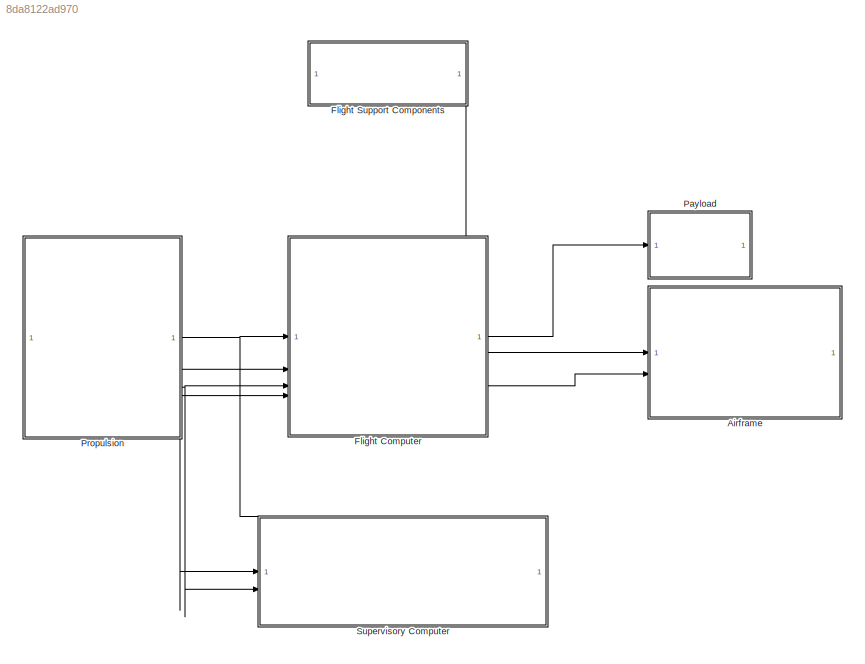
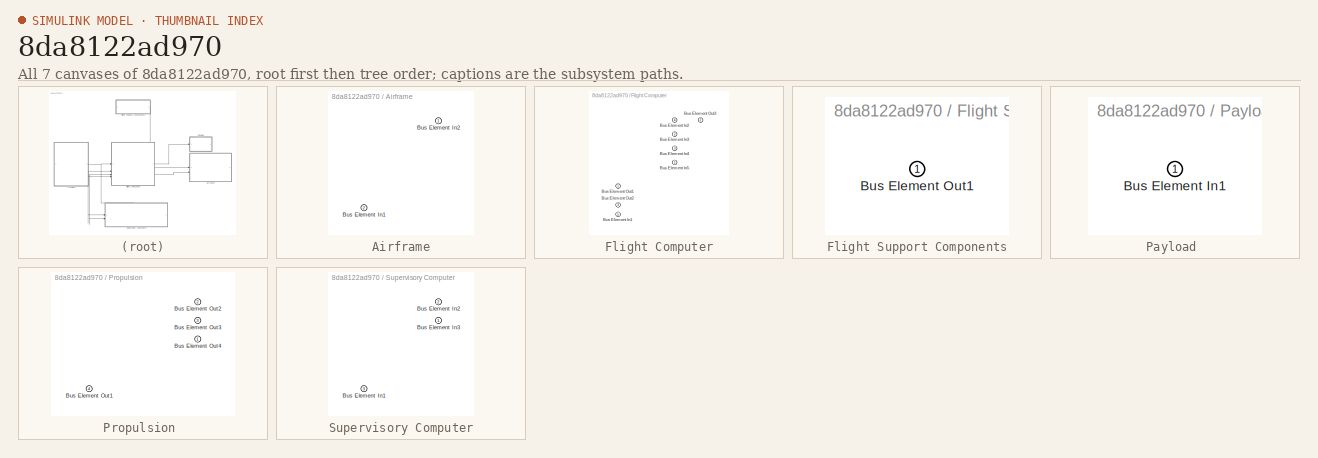
[diagram: thumbnail index - all 7 canvases of the model, root first then tree order]
MODEL slx_8da8122ad970
KIND model
CONFIG AbsTol = auto
CONFIG EnableMultiTasking = off
CONFIG FixedStep = auto
CONFIG MaxStep = auto
CONFIG MinStep = auto
CONFIG RelTol = 1e-3
CONFIG SampleTimeConstraint = Unconstrained
CONFIG SolverName = VariableStepAuto
CONFIG StartTime = 0.0
CONFIG StopTime = 10.0
BLOCK [SubSystem] Airframe
  PortSchema = {"entries":[{"content":{"headerSize":26,"margin":15,"minimumSpacing":25,"sides":[{"content":{"connectorIds":["In1","In2"]},"type":"ConnectorPlacement.EquallySpacedRectSide","uuid":"2c5e2d04-4906-4331-9418-21fa8db35aaf"},{"content":{"side":"RIGHT"},"type":"ConnectorPlacement.EquallySpacedRectSide","uuid":"94a89f28-0e32-42bb-af58-158d3f1cfd39"},{"content":{"side":"TOP"},"type":"ConnectorPlacement.Eq...<+252ch>
BLOCK [Inport] Airframe/Bus Element In1
  Port = 2
BLOCK [Inport] Airframe/Bus Element In2
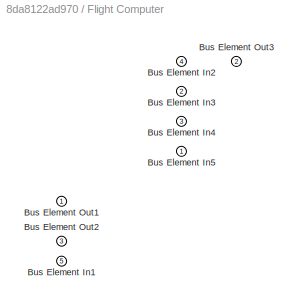
BLOCK [SubSystem] Flight Computer
  PortSchema = {"entries":[{"content":{"headerSize":26,"margin":15,"minimumSpacing":25,"sides":[{"content":{"connectorIds":["In1","In2","In3","In4"]},"type":"ConnectorPlacement.EquallySpacedRectSide","uuid":"2c5e2d04-4906-4331-9418-21fa8db35aaf"},{"content":{"connectorIds":["Out1","Out2","Out3"],"side":"RIGHT"},"type":"ConnectorPlacement.EquallySpacedRectSide","uuid":"94a89f28-0e32-42bb-af58-158d3f1cfd39"},{"con...<+325ch>
BLOCK [Inport] Flight Computer/Bus Element In1
  Port = 5
BLOCK [Inport] Flight Computer/Bus Element In2
  Port = 4
BLOCK [Inport] Flight Computer/Bus Element In3
  Port = 2
BLOCK [Inport] Flight Computer/Bus Element In4
  Port = 3
BLOCK [Inport] Flight Computer/Bus Element In5
BLOCK [Outport] Flight Computer/Bus Element Out1
BLOCK [Outport] Flight Computer/Bus Element Out2
  Port = 3
BLOCK [Outport] Flight Computer/Bus Element Out3
  Port = 2
BLOCK [SubSystem] Flight Support Components
  PortSchema = {"entries":[{"content":{"headerSize":26,"margin":15,"minimumSpacing":25,"sides":[{"content":{},"type":"ConnectorPlacement.EquallySpacedRectSide","uuid":"2c5e2d04-4906-4331-9418-21fa8db35aaf"},{"content":{"side":"RIGHT"},"type":"ConnectorPlacement.EquallySpacedRectSide","uuid":"94a89f28-0e32-42bb-af58-158d3f1cfd39"},{"content":{"side":"TOP"},"type":"ConnectorPlacement.EquallySpacedRectSide","uuid":...<+374ch>
BLOCK [Outport] Flight Support Components/Bus Element Out1
BLOCK [SubSystem] Payload 
  PortSchema = {"entries":[{"content":{"headerSize":26,"margin":15,"minimumSpacing":25,"sides":[{"content":{"connectorIds":["In1"]},"type":"ConnectorPlacement.EquallySpacedRectSide","uuid":"2c5e2d04-4906-4331-9418-21fa8db35aaf"},{"content":{"side":"RIGHT"},"type":"ConnectorPlacement.EquallySpacedRectSide","uuid":"94a89f28-0e32-42bb-af58-158d3f1cfd39"},{"content":{"side":"TOP"},"type":"ConnectorPlacement.EquallyS...<+246ch>
BLOCK [Inport] Payload /Bus Element In1
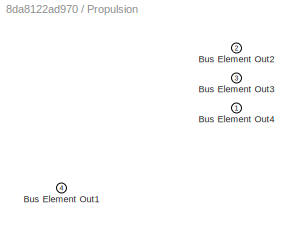
BLOCK [SubSystem] Propulsion 
  PortSchema = {"entries":[{"content":{"headerSize":26,"margin":15,"minimumSpacing":25,"sides":[{"content":{},"type":"ConnectorPlacement.EquallySpacedRectSide","uuid":"2c5e2d04-4906-4331-9418-21fa8db35aaf"},{"content":{"connectorIds":["Out1","Out2","Out3","Out4"],"side":"RIGHT"},"type":"ConnectorPlacement.EquallySpacedRectSide","uuid":"94a89f28-0e32-42bb-af58-158d3f1cfd39"},{"content":{"side":"TOP"},"type":"Conn...<+269ch>
BLOCK [Outport] Propulsion /Bus Element Out1
  Port = 4
BLOCK [Outport] Propulsion /Bus Element Out2
  Port = 2
BLOCK [Outport] Propulsion /Bus Element Out3
  Port = 3
BLOCK [Outport] Propulsion /Bus Element Out4
BLOCK [SubSystem] Supervisory Computer
  PortSchema = {"entries":[{"content":{"headerSize":26,"margin":15,"minimumSpacing":25,"sides":[{"content":{"connectorIds":["In1","In2"]},"type":"ConnectorPlacement.EquallySpacedRectSide","uuid":"2c5e2d04-4906-4331-9418-21fa8db35aaf"},{"content":{"side":"RIGHT"},"type":"ConnectorPlacement.EquallySpacedRectSide","uuid":"94a89f28-0e32-42bb-af58-158d3f1cfd39"},{"content":{"connectorIds":["In3"],"side":"TOP"},"type"...<+275ch>
BLOCK [Inport] Supervisory Computer/Bus Element In1
  Port = 3
BLOCK [Inport] Supervisory Computer/Bus Element In2
  Port = 2
BLOCK [Inport] Supervisory Computer/Bus Element In3
LINE Flight Computer:1 -> Payload :1
LINE Flight Computer:2 -> Airframe:1
LINE Flight Computer:3 -> Airframe:2
LINE Flight Support Components:1 -> Flight Computer:5
NET Propulsion :1 -> Flight Computer:1, Supervisory Computer:3
NET Propulsion :2 -> Flight Computer:2, Supervisory Computer:1
NET Propulsion :3 -> Flight Computer:3, Supervisory Computer:2
LINE Propulsion :4 -> Flight Computer:4
note: NET lines group one-source signal fan-out (src -> all destinations, sorted); 1:1 wires keep LINE
